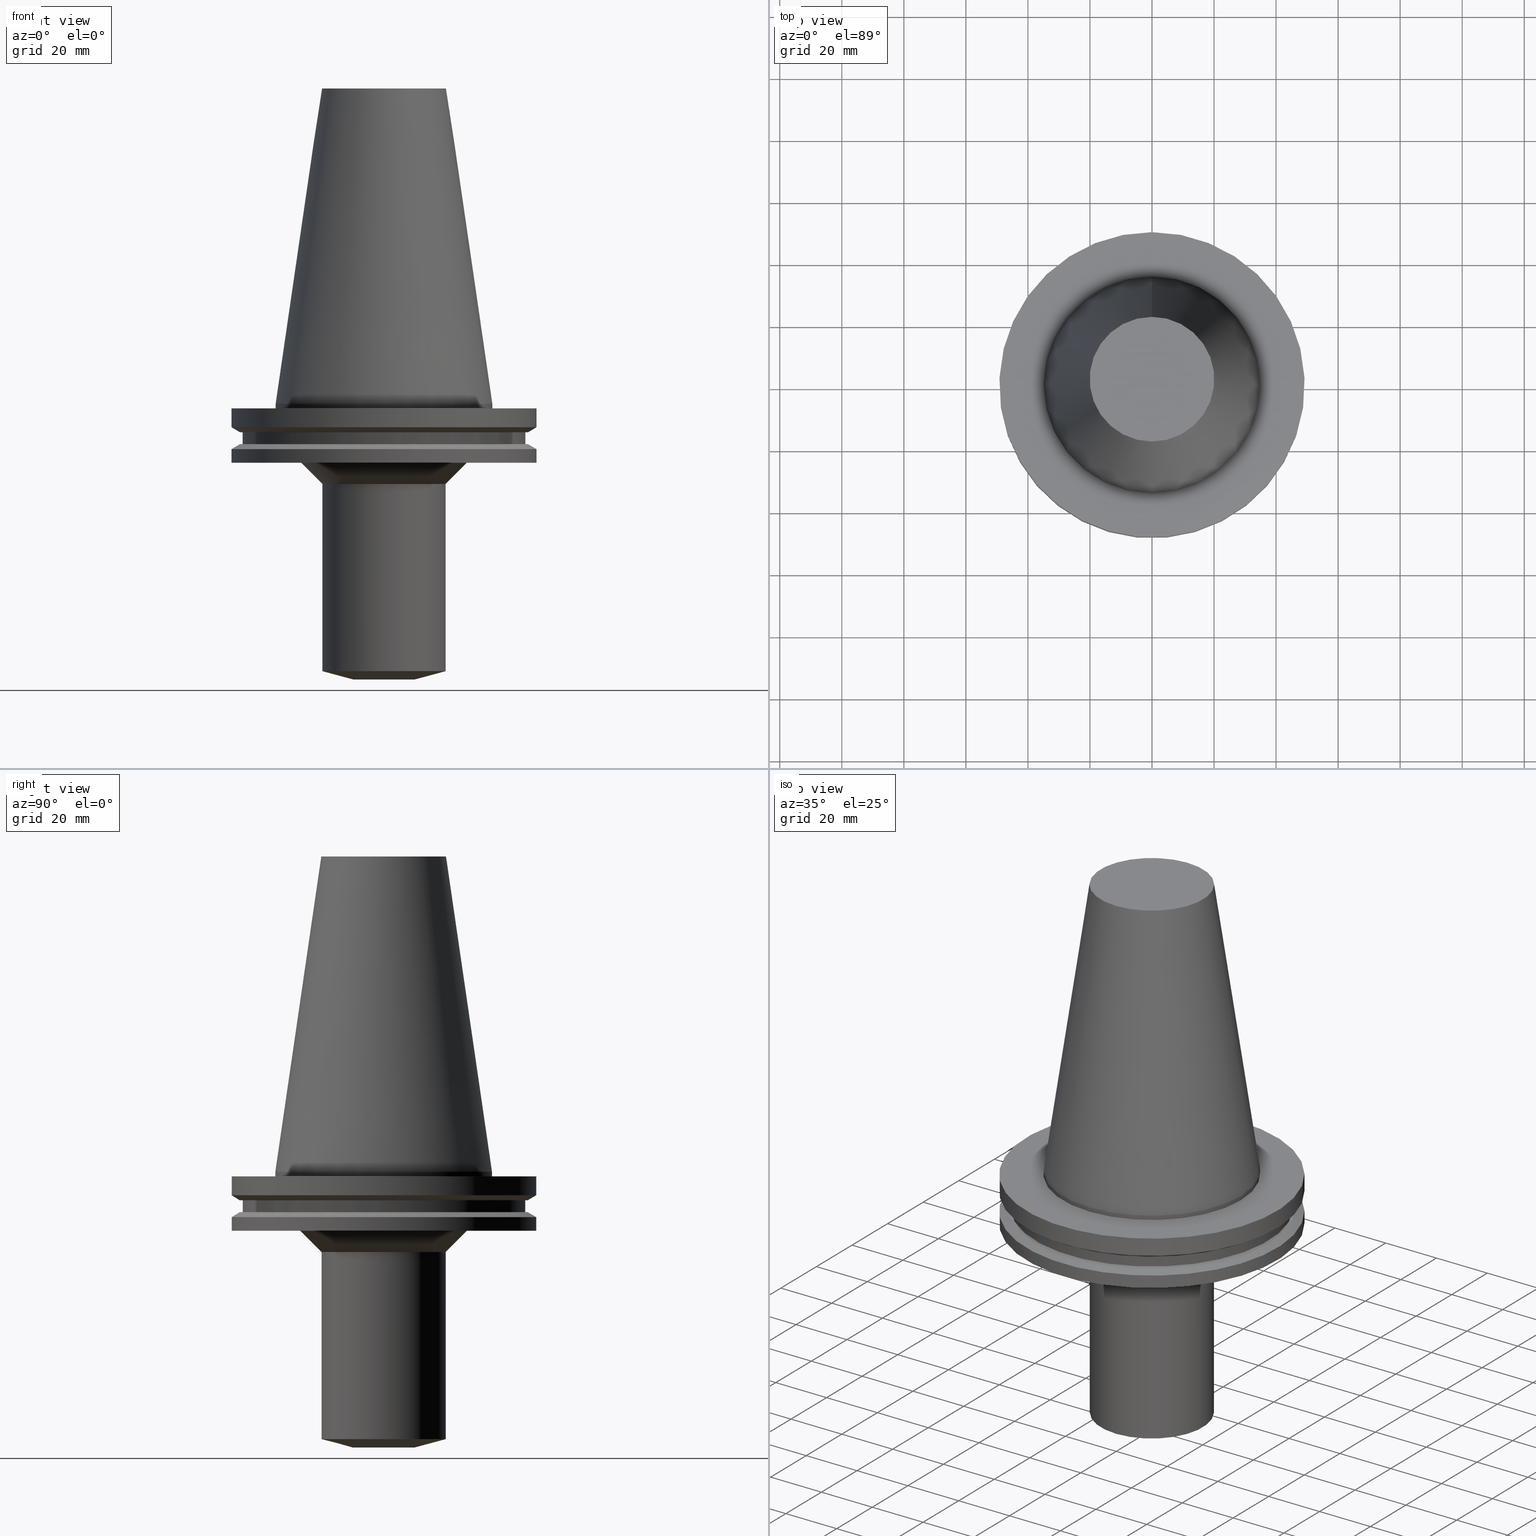
[diagram: canonical four-view strip — front | top / right | iso, engineering-drawing reading convention]
A machine part, canonical four-view strip (front | top / right | iso — engineering-drawing reading convention). The complete STEP part file that produces these views, byte-faithful:
ISO-10303-21;
HEADER;
FILE_DESCRIPTION((''),'1');
FILE_NAME('V:/01_Dxf_Field-HP\X2\FF71FF6FFF8CFF9F5916\X0\2013/BIGKAISER\X2\FF76FF80FF9BFF78FF9E63B28F095206\X0\_BKUS_201803/BCV50Y-BSL/BCV50Y-BSL.625-3.5.stp','2018-03-13T06:31:51',(''),(''),'Spatial Interop R21 SP3','Kubotek KeyCreator 2011 V10.0.2 (22737)',' ');
FILE_SCHEMA(('automotive_design'));
ENDSEC;
DATA;
#1=MECHANICAL_DESIGN_GEOMETRIC_PRESENTATION_REPRESENTATION(' ',(#10,#11,#12,#13,#14,#15,#16,#17,#18,#19,#20,#21,#22,#23,#24,#25,#26,#27,#28,#29,#30,#31,#32,#33,#34,#35,#36,#37,#38,#39,#40,#41),#6);
#2=PRODUCT_DEFINITION_CONTEXT('',#42,'design');
#3=APPLICATION_PROTOCOL_DEFINITION('INTERNATIONAL STANDARD','automotive_design',1994,#42);
#4=PRODUCT_CATEGORY_RELATIONSHIP('NONE','NONE',#43,#44);
#5=SHAPE_DEFINITION_REPRESENTATION(#45,#46);
#6= (GEOMETRIC_REPRESENTATION_CONTEXT(3)GLOBAL_UNCERTAINTY_ASSIGNED_CONTEXT((#49))GLOBAL_UNIT_ASSIGNED_CONTEXT((#51,#52,#53))REPRESENTATION_CONTEXT('NONE','WORKSPACE'));
#10=STYLED_ITEM('',(#55,#56),#57);
#11=STYLED_ITEM('',(#58),#59);
#12=STYLED_ITEM('',(#60,#61),#62);
#13=STYLED_ITEM('',(#63,#64),#65);
#14=STYLED_ITEM('',(#66),#67);
#15=STYLED_ITEM('',(#68),#69);
#16=STYLED_ITEM('',(#70,#71),#72);
#17=STYLED_ITEM('',(#73,#74),#75);
#18=STYLED_ITEM('',(#76),#77);
#19=STYLED_ITEM('',(#78,#79),#80);
#20=STYLED_ITEM('',(#81),#82);
#21=STYLED_ITEM('',(#83,#84),#85);
#22=STYLED_ITEM('',(#86,#87),#88);
#23=STYLED_ITEM('',(#89),#90);
#24=STYLED_ITEM('',(#91,#92),#93);
#25=STYLED_ITEM('',(#94),#95);
#26=STYLED_ITEM('',(#96,#97),#98);
#27=STYLED_ITEM('',(#99,#100),#101);
#28=STYLED_ITEM('',(#102),#103);
#29=STYLED_ITEM('',(#104,#105),#106);
#30=STYLED_ITEM('',(#107),#108);
#31=STYLED_ITEM('',(#109,#110),#111);
#32=STYLED_ITEM('',(#112,#113),#114);
#33=STYLED_ITEM('',(#115),#116);
#34=STYLED_ITEM('',(#117,#118),#119);
#35=STYLED_ITEM('',(#120,#121),#122);
#36=STYLED_ITEM('',(#123),#124);
#37=STYLED_ITEM('',(#125,#126),#127);
#38=STYLED_ITEM('',(#128),#129);
#39=STYLED_ITEM('',(#130),#131);
#40=STYLED_ITEM('',(#132),#133);
#41=STYLED_ITEM('',(#134),#135);
#42=APPLICATION_CONTEXT(' ');
#43=PRODUCT_CATEGORY('part','NONE');
#44=PRODUCT_RELATED_PRODUCT_CATEGORY('detail',' ',(#136));
#45=PRODUCT_DEFINITION_SHAPE('NONE','NONE',#137);
#46=ADVANCED_BREP_SHAPE_REPRESENTATION('Unnamed[1]',(#80,#138),#6);
#49=UNCERTAINTY_MEASURE_WITH_UNIT(LENGTH_MEASURE(1.0E-006),#51,'','');
#51= (CONVERSION_BASED_UNIT('MILLIMETRE',#141)LENGTH_UNIT()NAMED_UNIT(#144));
#52= (NAMED_UNIT(#146)PLANE_ANGLE_UNIT()SI_UNIT($,.RADIAN.));
#53= (NAMED_UNIT(#146)SOLID_ANGLE_UNIT()SI_UNIT($,.STERADIAN.));
#55=PRESENTATION_STYLE_ASSIGNMENT((#152));
#56=PRESENTATION_STYLE_ASSIGNMENT((#153));
#57=ADVANCED_FACE('Unnamed[1]',(#154,#155),#156,.T.);
#58=PRESENTATION_STYLE_ASSIGNMENT((#157));
#59=EDGE_CURVE('Unnamed[1]',#158,#158,#159,.T.);
#60=PRESENTATION_STYLE_ASSIGNMENT((#160));
#61=PRESENTATION_STYLE_ASSIGNMENT((#161));
#62=ADVANCED_FACE('Unnamed[1]',(#162,#163),#164,.T.);
#63=PRESENTATION_STYLE_ASSIGNMENT((#165));
#64=PRESENTATION_STYLE_ASSIGNMENT((#166));
#65=ADVANCED_FACE('Unnamed[1]',(#167,#168),#169,.T.);
#66=PRESENTATION_STYLE_ASSIGNMENT((#170));
#67=EDGE_CURVE('Unnamed[1]',#171,#171,#172,.T.);
#68=PRESENTATION_STYLE_ASSIGNMENT((#173));
#69=EDGE_CURVE('Unnamed[1]',#174,#174,#175,.T.);
#70=PRESENTATION_STYLE_ASSIGNMENT((#176));
#71=PRESENTATION_STYLE_ASSIGNMENT((#177));
#72=ADVANCED_FACE('Unnamed[1]',(#178,#179),#180,.T.);
#73=PRESENTATION_STYLE_ASSIGNMENT((#181));
#74=PRESENTATION_STYLE_ASSIGNMENT((#182));
#75=ADVANCED_FACE('Unnamed[1]',(#183,#184),#185,.T.);
#76=PRESENTATION_STYLE_ASSIGNMENT((#186));
#77=EDGE_CURVE('Unnamed[1]',#187,#187,#188,.T.);
#78=PRESENTATION_STYLE_ASSIGNMENT((#189));
#79=PRESENTATION_STYLE_ASSIGNMENT((#190));
#80=MANIFOLD_SOLID_BREP('Unnamed[1]',#191);
#81=PRESENTATION_STYLE_ASSIGNMENT((#192));
#82=EDGE_CURVE('Unnamed[1]',#193,#193,#194,.T.);
#83=PRESENTATION_STYLE_ASSIGNMENT((#195));
#84=PRESENTATION_STYLE_ASSIGNMENT((#196));
#85=ADVANCED_FACE('Unnamed[1]',(#197,#198),#199,.T.);
#86=PRESENTATION_STYLE_ASSIGNMENT((#200));
#87=PRESENTATION_STYLE_ASSIGNMENT((#201));
#88=ADVANCED_FACE('Unnamed[1]',(#202,#203),#204,.T.);
#89=PRESENTATION_STYLE_ASSIGNMENT((#205));
#90=EDGE_CURVE('Unnamed[1]',#206,#206,#207,.T.);
#91=PRESENTATION_STYLE_ASSIGNMENT((#208));
#92=PRESENTATION_STYLE_ASSIGNMENT((#209));
#93=ADVANCED_FACE('Unnamed[1]',(#210,#211),#212,.T.);
#94=PRESENTATION_STYLE_ASSIGNMENT((#213));
#95=EDGE_CURVE('Unnamed[1]',#214,#214,#215,.T.);
#96=PRESENTATION_STYLE_ASSIGNMENT((#216));
#97=PRESENTATION_STYLE_ASSIGNMENT((#217));
#98=ADVANCED_FACE('Unnamed[1]',(#218,#219),#220,.T.);
#99=PRESENTATION_STYLE_ASSIGNMENT((#221));
#100=PRESENTATION_STYLE_ASSIGNMENT((#222));
#101=ADVANCED_FACE('Unnamed[1]',(#223,#224),#225,.T.);
#102=PRESENTATION_STYLE_ASSIGNMENT((#226));
#103=EDGE_CURVE('Unnamed[1]',#227,#227,#228,.T.);
#104=PRESENTATION_STYLE_ASSIGNMENT((#229));
#105=PRESENTATION_STYLE_ASSIGNMENT((#230));
#106=ADVANCED_FACE('Unnamed[1]',(#231,#232),#233,.T.);
#107=PRESENTATION_STYLE_ASSIGNMENT((#234));
#108=EDGE_CURVE('Unnamed[1]',#235,#235,#236,.T.);
#109=PRESENTATION_STYLE_ASSIGNMENT((#237));
#110=PRESENTATION_STYLE_ASSIGNMENT((#238));
#111=ADVANCED_FACE('Unnamed[1]',(#239,#240),#241,.T.);
#112=PRESENTATION_STYLE_ASSIGNMENT((#242));
#113=PRESENTATION_STYLE_ASSIGNMENT((#243));
#114=ADVANCED_FACE('Unnamed[1]',(#244,#245),#246,.T.);
#115=PRESENTATION_STYLE_ASSIGNMENT((#247));
#116=EDGE_CURVE('Unnamed[1]',#248,#248,#249,.T.);
#117=PRESENTATION_STYLE_ASSIGNMENT((#250));
#118=PRESENTATION_STYLE_ASSIGNMENT((#251));
#119=ADVANCED_FACE('Unnamed[1]',(#252),#253,.T.);
#120=PRESENTATION_STYLE_ASSIGNMENT((#254));
#121=PRESENTATION_STYLE_ASSIGNMENT((#255));
#122=ADVANCED_FACE('Unnamed[1]',(#256,#257),#258,.T.);
#123=PRESENTATION_STYLE_ASSIGNMENT((#259));
#124=EDGE_CURVE('Unnamed[1]',#260,#260,#261,.T.);
#125=PRESENTATION_STYLE_ASSIGNMENT((#262));
#126=PRESENTATION_STYLE_ASSIGNMENT((#263));
#127=ADVANCED_FACE('Unnamed[1]',(#264),#265,.T.);
#128=PRESENTATION_STYLE_ASSIGNMENT((#266));
#129=EDGE_CURVE('Unnamed[1]',#267,#267,#268,.T.);
#130=PRESENTATION_STYLE_ASSIGNMENT((#269));
#131=EDGE_CURVE('Unnamed[1]',#270,#270,#271,.T.);
#132=PRESENTATION_STYLE_ASSIGNMENT((#272));
#133=EDGE_CURVE('Unnamed[1]',#273,#273,#274,.T.);
#134=PRESENTATION_STYLE_ASSIGNMENT((#275));
#135=EDGE_CURVE('Unnamed[1]',#276,#276,#277,.T.);
#136=PRODUCT('Unnamed[1]','Unnamed[1]','PART-Unnamed[1]-DESC',(#278));
#137=PRODUCT_DEFINITION('NONE','NONE',#279,#2);
#138=AXIS2_PLACEMENT_3D('',#280,#281,#282);
#141=LENGTH_MEASURE_WITH_UNIT(LENGTH_MEASURE(1.0),#283);
#144=DIMENSIONAL_EXPONENTS(1.0,0.0,0.0,0.0,0.0,0.0,0.0);
#146=DIMENSIONAL_EXPONENTS(0.0,0.0,0.0,0.0,0.0,0.0,0.0);
#152=SURFACE_STYLE_USAGE(.BOTH.,#284);
#153=CURVE_STYLE('',#285,POSITIVE_LENGTH_MEASURE(1000.0),#286);
#154=FACE_OUTER_BOUND('',#287,.T.);
#155=FACE_BOUND('',#288,.T.);
#156=PLANE('',#289);
#157=CURVE_STYLE('',#290,POSITIVE_LENGTH_MEASURE(1000.0),#291);
#158=VERTEX_POINT('',#292);
#159=CIRCLE('',#293,34.925);
#160=SURFACE_STYLE_USAGE(.BOTH.,#294);
#161=CURVE_STYLE('',#295,POSITIVE_LENGTH_MEASURE(1000.0),#296);
#162=FACE_BOUND('',#297,.T.);
#163=FACE_BOUND('',#298,.T.);
#164=CONICAL_SURFACE('',#299,23.424999999992,0.785398163397448);
#165=SURFACE_STYLE_USAGE(.BOTH.,#300);
#166=CURVE_STYLE('',#301,POSITIVE_LENGTH_MEASURE(1000.0),#302);
#167=FACE_BOUND('',#303,.T.);
#168=FACE_BOUND('',#304,.T.);
#169=CYLINDRICAL_SURFACE('',#305,49.2125);
#170=CURVE_STYLE('',#306,POSITIVE_LENGTH_MEASURE(1000.0),#307);
#171=VERTEX_POINT('',#308);
#172=CIRCLE('',#309,19.9999999999964);
#173=CURVE_STYLE('',#310,POSITIVE_LENGTH_MEASURE(1000.0),#311);
#174=VERTEX_POINT('',#312);
#175=CIRCLE('',#313,46.43053755);
#176=SURFACE_STYLE_USAGE(.BOTH.,#314);
#177=CURVE_STYLE('',#315,POSITIVE_LENGTH_MEASURE(1000.0),#316);
#178=FACE_BOUND('',#317,.T.);
#179=FACE_BOUND('',#318,.T.);
#180=CONICAL_SURFACE('',#319,14.9999999999964,1.30899693899575);
#181=SURFACE_STYLE_USAGE(.BOTH.,#320);
#182=CURVE_STYLE('',#321,POSITIVE_LENGTH_MEASURE(1000.0),#322);
#183=FACE_BOUND('',#323,.T.);
#184=FACE_BOUND('',#324,.T.);
#185=CYLINDRICAL_SURFACE('',#325,45.645);
#186=CURVE_STYLE('',#326,POSITIVE_LENGTH_MEASURE(1000.0),#327);
#187=VERTEX_POINT('',#328);
#188=CIRCLE('',#329,26.8499999999889);
#189=SURFACE_STYLE_USAGE(.BOTH.,#330);
#190=CURVE_STYLE('',#331,POSITIVE_LENGTH_MEASURE(1000.0),#332);
#191=CLOSED_SHELL('',(#119,#106,#111,#93,#65,#98,#122,#75,#57,#85,#88,#114,#62,#101,#72,#127));
#192=CURVE_STYLE('',#333,POSITIVE_LENGTH_MEASURE(1000.0),#334);
#193=VERTEX_POINT('',#335);
#194=CIRCLE('',#336,49.2125);
#195=SURFACE_STYLE_USAGE(.BOTH.,#337);
#196=CURVE_STYLE('',#338,POSITIVE_LENGTH_MEASURE(1000.0),#339);
#197=FACE_BOUND('',#340,.T.);
#198=FACE_BOUND('',#341,.T.);
#199=CONICAL_SURFACE('',#342,47.821518775,1.04719755103023);
#200=SURFACE_STYLE_USAGE(.BOTH.,#343);
#201=CURVE_STYLE('',#344,POSITIVE_LENGTH_MEASURE(1000.0),#345);
#202=FACE_BOUND('',#346,.T.);
#203=FACE_BOUND('',#347,.T.);
#204=CYLINDRICAL_SURFACE('',#348,49.2125);
#205=CURVE_STYLE('',#349,POSITIVE_LENGTH_MEASURE(1000.0),#350);
#206=VERTEX_POINT('',#351);
#207=CIRCLE('',#352,45.645);
#208=SURFACE_STYLE_USAGE(.BOTH.,#353);
#209=CURVE_STYLE('',#354,POSITIVE_LENGTH_MEASURE(1000.0),#355);
#210=FACE_OUTER_BOUND('',#356,.T.);
#211=FACE_BOUND('',#357,.T.);
#212=PLANE('',#358);
#213=CURVE_STYLE('',#359,POSITIVE_LENGTH_MEASURE(1000.0),#360);
#214=VERTEX_POINT('',#361);
#215=CIRCLE('',#362,49.2125);
#216=SURFACE_STYLE_USAGE(.BOTH.,#363);
#217=CURVE_STYLE('',#364,POSITIVE_LENGTH_MEASURE(1000.0),#365);
#218=FACE_BOUND('',#366,.T.);
#219=FACE_BOUND('',#367,.T.);
#220=CONICAL_SURFACE('',#368,47.821518775,1.04719755103024);
#221=SURFACE_STYLE_USAGE(.BOTH.,#369);
#222=CURVE_STYLE('',#370,POSITIVE_LENGTH_MEASURE(1000.0),#371);
#223=FACE_BOUND('',#372,.T.);
#224=FACE_BOUND('',#373,.T.);
#225=CYLINDRICAL_SURFACE('',#374,19.9999999999957);
#226=CURVE_STYLE('',#375,POSITIVE_LENGTH_MEASURE(1000.0),#376);
#227=VERTEX_POINT('',#377);
#228=CIRCLE('',#378,49.2125);
#229=SURFACE_STYLE_USAGE(.BOTH.,#379);
#230=CURVE_STYLE('',#380,POSITIVE_LENGTH_MEASURE(1000.0),#381);
#231=FACE_BOUND('',#382,.T.);
#232=FACE_BOUND('',#383,.T.);
#233=CONICAL_SURFACE('',#384,27.5166666648609,0.144812498273746);
#234=CURVE_STYLE('',#385,POSITIVE_LENGTH_MEASURE(1000.0),#386);
#235=VERTEX_POINT('',#387);
#236=CIRCLE('',#388,45.645);
#237=SURFACE_STYLE_USAGE(.BOTH.,#389);
#238=CURVE_STYLE('',#390,POSITIVE_LENGTH_MEASURE(1000.0),#391);
#239=FACE_BOUND('',#392,.T.);
#240=FACE_BOUND('',#393,.T.);
#241=CYLINDRICAL_SURFACE('',#394,34.925);
#242=SURFACE_STYLE_USAGE(.BOTH.,#395);
#243=CURVE_STYLE('',#396,POSITIVE_LENGTH_MEASURE(1000.0),#397);
#244=FACE_BOUND('',#398,.T.);
#245=FACE_OUTER_BOUND('',#399,.T.);
#246=PLANE('',#400);
#247=CURVE_STYLE('',#401,POSITIVE_LENGTH_MEASURE(1000.0),#402);
#248=VERTEX_POINT('',#403);
#249=CIRCLE('',#404,9.99999999999631);
#250=SURFACE_STYLE_USAGE(.BOTH.,#405);
#251=CURVE_STYLE('',#406,POSITIVE_LENGTH_MEASURE(1000.0),#407);
#252=FACE_OUTER_BOUND('',#408,.T.);
#253=PLANE('',#409);
#254=SURFACE_STYLE_USAGE(.BOTH.,#410);
#255=CURVE_STYLE('',#411,POSITIVE_LENGTH_MEASURE(1000.0),#412);
#256=FACE_BOUND('',#413,.T.);
#257=FACE_OUTER_BOUND('',#414,.T.);
#258=PLANE('',#415);
#259=CURVE_STYLE('',#416,POSITIVE_LENGTH_MEASURE(1000.0),#417);
#260=VERTEX_POINT('',#418);
#261=CIRCLE('',#419,49.2125);
#262=SURFACE_STYLE_USAGE(.BOTH.,#420);
#263=CURVE_STYLE('',#421,POSITIVE_LENGTH_MEASURE(1000.0),#422);
#264=FACE_OUTER_BOUND('',#423,.T.);
#265=PLANE('',#424);
#266=CURVE_STYLE('',#425,POSITIVE_LENGTH_MEASURE(1000.0),#426);
#267=VERTEX_POINT('',#427);
#268=CIRCLE('',#428,20.1083333297217);
#269=CURVE_STYLE('',#429,POSITIVE_LENGTH_MEASURE(1000.0),#430);
#270=VERTEX_POINT('',#431);
#271=CIRCLE('',#432,34.925);
#272=CURVE_STYLE('',#433,POSITIVE_LENGTH_MEASURE(1000.0),#434);
#273=VERTEX_POINT('',#435);
#274=CIRCLE('',#436,19.999999999995);
#275=CURVE_STYLE('',#437,POSITIVE_LENGTH_MEASURE(1000.0),#438);
#276=VERTEX_POINT('',#439);
#277=CIRCLE('',#440,46.43053755);
#278=PRODUCT_CONTEXT('',#42,'mechanical');
#279=PRODUCT_DEFINITION_FORMATION_WITH_SPECIFIED_SOURCE(' ','NONE',#136,.NOT_KNOWN.);
#280=CARTESIAN_POINT('',(0.0,0.0,0.0));
#281=DIRECTION('',(0.0,0.0,1.0));
#282=DIRECTION('',(1.0,0.0,0.0));
#283= (NAMED_UNIT(#144)LENGTH_UNIT()SI_UNIT(.MILLI.,.METRE.));
#284=SURFACE_SIDE_STYLE('',(#442));
#285=DRAUGHTING_PRE_DEFINED_CURVE_FONT('continuous');
#286=COLOUR_RGB('',0.0,1.0,0.0);
#287=EDGE_LOOP('',(#443));
#288=EDGE_LOOP('',(#444));
#289=AXIS2_PLACEMENT_3D('',#445,#446,#447);
#290=DRAUGHTING_PRE_DEFINED_CURVE_FONT('continuous');
#291=COLOUR_RGB('',0.0,1.0,0.0);
#292=CARTESIAN_POINT('',(-4.30483861169435E-031,34.925,4.27707894602213E-015));
#293=AXIS2_PLACEMENT_3D('',#448,#449,#450);
#294=SURFACE_SIDE_STYLE('',(#451));
#295=DRAUGHTING_PRE_DEFINED_CURVE_FONT('continuous');
#296=COLOUR_RGB('',0.0,1.0,0.0);
#297=EDGE_LOOP('',(#452));
#298=EDGE_LOOP('',(#453));
#299=AXIS2_PLACEMENT_3D('',#454,#455,#456);
#300=SURFACE_SIDE_STYLE('',(#457));
#301=DRAUGHTING_PRE_DEFINED_CURVE_FONT('continuous');
#302=COLOUR_RGB('',0.0,1.0,0.0);
#303=EDGE_LOOP('',(#458));
#304=EDGE_LOOP('',(#459));
#305=AXIS2_PLACEMENT_3D('',#460,#461,#462);
#306=DRAUGHTING_PRE_DEFINED_CURVE_FONT('continuous');
#307=COLOUR_RGB('',0.0,1.0,0.0);
#308=CARTESIAN_POINT('',(5.27948346178746E-015,19.9999999999964,-86.2205080756875));
#309=AXIS2_PLACEMENT_3D('',#463,#464,#465);
#310=DRAUGHTING_PRE_DEFINED_CURVE_FONT('continuous');
#311=COLOUR_RGB('',0.0,1.0,0.0);
#312=CARTESIAN_POINT('',(7.98469713044073E-016,46.43053755,-13.04));
#313=AXIS2_PLACEMENT_3D('',#466,#467,#468);
#314=SURFACE_SIDE_STYLE('',(#469));
#315=DRAUGHTING_PRE_DEFINED_CURVE_FONT('continuous');
#316=COLOUR_RGB('',0.0,1.0,0.0);
#317=EDGE_LOOP('',(#470));
#318=EDGE_LOOP('',(#471));
#319=AXIS2_PLACEMENT_3D('',#472,#473,#474);
#320=SURFACE_SIDE_STYLE('',(#475));
#321=DRAUGHTING_PRE_DEFINED_CURVE_FONT('continuous');
#322=COLOUR_RGB('',0.0,1.0,0.0);
#323=EDGE_LOOP('',(#476));
#324=EDGE_LOOP('',(#477));
#325=AXIS2_PLACEMENT_3D('',#478,#479,#480);
#326=DRAUGHTING_PRE_DEFINED_CURVE_FONT('continuous');
#327=COLOUR_RGB('',0.0,1.0,0.0);
#328=CARTESIAN_POINT('',(1.16647607618786E-015,26.8499999999889,-19.0500000000002));
#329=AXIS2_PLACEMENT_3D('',#481,#482,#483);
#330=SURFACE_SIDE_STYLE('',(#484));
#331=DRAUGHTING_PRE_DEFINED_CURVE_FONT('continuous');
#332=COLOUR_RGB('',0.0,1.0,0.0);
#333=DRAUGHTING_PRE_DEFINED_CURVE_FONT('continuous');
#334=COLOUR_RGB('',0.0,1.0,0.0);
#335=CARTESIAN_POINT('',(1.16647607618785E-015,49.2125,-19.05));
#336=AXIS2_PLACEMENT_3D('',#485,#486,#487);
#337=SURFACE_SIDE_STYLE('',(#488));
#338=DRAUGHTING_PRE_DEFINED_CURVE_FONT('continuous');
#339=COLOUR_RGB('',0.0,1.0,0.0);
#340=EDGE_LOOP('',(#489));
#341=EDGE_LOOP('',(#490));
#342=AXIS2_PLACEMENT_3D('',#491,#492,#493);
#343=SURFACE_SIDE_STYLE('',(#494));
#344=DRAUGHTING_PRE_DEFINED_CURVE_FONT('continuous');
#345=COLOUR_RGB('',0.0,1.0,0.0);
#346=EDGE_LOOP('',(#495));
#347=EDGE_LOOP('',(#496));
#348=AXIS2_PLACEMENT_3D('',#497,#498,#499);
#349=DRAUGHTING_PRE_DEFINED_CURVE_FONT('continuous');
#350=COLOUR_RGB('',0.0,1.0,0.0);
#351=CARTESIAN_POINT('',(5.63337527607782E-016,45.645,-9.2));
#352=AXIS2_PLACEMENT_3D('',#500,#501,#502);
#353=SURFACE_SIDE_STYLE('',(#503));
#354=DRAUGHTING_PRE_DEFINED_CURVE_FONT('continuous');
#355=COLOUR_RGB('',0.0,1.0,0.0);
#356=EDGE_LOOP('',(#504));
#357=EDGE_LOOP('',(#505));
#358=AXIS2_PLACEMENT_3D('',#506,#507,#508);
#359=DRAUGHTING_PRE_DEFINED_CURVE_FONT('continuous');
#360=COLOUR_RGB('',0.0,1.0,0.0);
#361=CARTESIAN_POINT('',(4.64988177918915E-016,49.2125,-7.59383323));
#362=AXIS2_PLACEMENT_3D('',#509,#510,#511);
#363=SURFACE_SIDE_STYLE('',(#512));
#364=DRAUGHTING_PRE_DEFINED_CURVE_FONT('continuous');
#365=COLOUR_RGB('',0.0,1.0,0.0);
#366=EDGE_LOOP('',(#513));
#367=EDGE_LOOP('',(#514));
#368=AXIS2_PLACEMENT_3D('',#515,#516,#517);
#369=SURFACE_SIDE_STYLE('',(#518));
#370=DRAUGHTING_PRE_DEFINED_CURVE_FONT('continuous');
#371=COLOUR_RGB('',0.0,1.0,0.0);
#372=EDGE_LOOP('',(#519));
#373=EDGE_LOOP('',(#520));
#374=AXIS2_PLACEMENT_3D('',#521,#522,#523);
#375=DRAUGHTING_PRE_DEFINED_CURVE_FONT('continuous');
#376=COLOUR_RGB('',0.0,1.0,0.0);
#377=CARTESIAN_POINT('',(9.18485099360509E-017,49.2125,-1.49999999999999));
#378=AXIS2_PLACEMENT_3D('',#524,#525,#526);
#379=SURFACE_SIDE_STYLE('',(#527));
#380=DRAUGHTING_PRE_DEFINED_CURVE_FONT('continuous');
#381=COLOUR_RGB('',0.0,1.0,0.0);
#382=EDGE_LOOP('',(#528));
#383=EDGE_LOOP('',(#529));
#384=AXIS2_PLACEMENT_3D('',#530,#531,#532);
#385=DRAUGHTING_PRE_DEFINED_CURVE_FONT('continuous');
#386=COLOUR_RGB('',0.0,1.0,0.0);
#387=CARTESIAN_POINT('',(7.98469713044073E-016,45.645,-13.04));
#388=AXIS2_PLACEMENT_3D('',#533,#534,#535);
#389=SURFACE_SIDE_STYLE('',(#536));
#390=DRAUGHTING_PRE_DEFINED_CURVE_FONT('continuous');
#391=COLOUR_RGB('',0.0,1.0,0.0);
#392=EDGE_LOOP('',(#537));
#393=EDGE_LOOP('',(#538));
#394=AXIS2_PLACEMENT_3D('',#539,#540,#541);
#395=SURFACE_SIDE_STYLE('',(#542));
#396=DRAUGHTING_PRE_DEFINED_CURVE_FONT('continuous');
#397=COLOUR_RGB('',0.0,1.0,0.0);
#398=EDGE_LOOP('',(#543));
#399=EDGE_LOOP('',(#544));
#400=AXIS2_PLACEMENT_3D('',#545,#546,#547);
#401=DRAUGHTING_PRE_DEFINED_CURVE_FONT('continuous');
#402=COLOUR_RGB('',0.0,1.0,0.0);
#403=CARTESIAN_POINT('',(5.44355502220991E-015,9.99999999999632,-88.8999999999987));
#404=AXIS2_PLACEMENT_3D('',#548,#549,#550);
#405=SURFACE_SIDE_STYLE('',(#551));
#406=DRAUGHTING_PRE_DEFINED_CURVE_FONT('continuous');
#407=COLOUR_RGB('',0.0,1.0,0.0);
#408=EDGE_LOOP('',(#552));
#409=AXIS2_PLACEMENT_3D('',#553,#554,#555);
#410=SURFACE_SIDE_STYLE('',(#556));
#411=DRAUGHTING_PRE_DEFINED_CURVE_FONT('continuous');
#412=COLOUR_RGB('',0.0,1.0,0.0);
#413=EDGE_LOOP('',(#557));
#414=EDGE_LOOP('',(#558));
#415=AXIS2_PLACEMENT_3D('',#559,#560,#561);
#416=DRAUGHTING_PRE_DEFINED_CURVE_FONT('continuous');
#417=COLOUR_RGB('',0.0,1.0,0.0);
#418=CARTESIAN_POINT('',(8.96819062732941E-016,49.2125,-14.64616677));
#419=AXIS2_PLACEMENT_3D('',#562,#563,#564);
#420=SURFACE_SIDE_STYLE('',(#565));
#421=DRAUGHTING_PRE_DEFINED_CURVE_FONT('continuous');
#422=COLOUR_RGB('',0.0,1.0,0.0);
#423=EDGE_LOOP('',(#566));
#424=AXIS2_PLACEMENT_3D('',#567,#568,#569);
#425=DRAUGHTING_PRE_DEFINED_CURVE_FONT('continuous');
#426=COLOUR_RGB('',0.0,1.0,0.0);
#427=CARTESIAN_POINT('',(-6.22120573966855E-015,20.1083333297217,101.6));
#428=AXIS2_PLACEMENT_3D('',#570,#571,#572);
#429=DRAUGHTING_PRE_DEFINED_CURVE_FONT('continuous');
#430=COLOUR_RGB('',0.0,1.0,0.0);
#431=CARTESIAN_POINT('',(9.18485099360511E-017,34.925,-1.5));
#432=AXIS2_PLACEMENT_3D('',#573,#574,#575);
#433=DRAUGHTING_PRE_DEFINED_CURVE_FONT('continuous');
#434=COLOUR_RGB('',0.0,1.0,0.0);
#435=CARTESIAN_POINT('',(1.58591760489546E-015,19.999999999995,-25.899999999994));
#436=AXIS2_PLACEMENT_3D('',#576,#577,#578);
#437=DRAUGHTING_PRE_DEFINED_CURVE_FONT('continuous');
#438=COLOUR_RGB('',0.0,1.0,0.0);
#439=CARTESIAN_POINT('',(5.63337527607782E-016,46.43053755,-9.2));
#440=AXIS2_PLACEMENT_3D('',#579,#580,#581);
#442=SURFACE_STYLE_FILL_AREA(#582);
#443=ORIENTED_EDGE('',*,*,#69,.F.);
#444=ORIENTED_EDGE('',*,*,#108,.T.);
#445=CARTESIAN_POINT('',(7.98469713044073E-016,46.037768775,-13.04));
#446=DIRECTION('',(-6.12323399573677E-017,-1.22464679914735E-016,1.0));
#447=DIRECTION('',(1.23259516440783E-032,-1.0,-1.22464679914735E-016));
#448=CARTESIAN_POINT('',(0.0,0.0,0.0));
#449=DIRECTION('',(6.12323399573677E-017,1.22464679914735E-016,-1.0));
#450=DIRECTION('',(-1.23259516440783E-032,1.0,1.22464679914735E-016));
#451=SURFACE_STYLE_FILL_AREA(#583);
#452=ORIENTED_EDGE('',*,*,#133,.F.);
#453=ORIENTED_EDGE('',*,*,#77,.T.);
#454=CARTESIAN_POINT('',(1.37619684054166E-015,2.75239368108332E-015,-22.4749999999971));
#455=DIRECTION('',(-6.12323399573677E-017,-1.22464679914735E-016,1.0));
#456=DIRECTION('',(-1.23259516440783E-032,1.0,1.22464679914735E-016));
#457=SURFACE_STYLE_FILL_AREA(#584);
#458=ORIENTED_EDGE('',*,*,#95,.F.);
#459=ORIENTED_EDGE('',*,*,#103,.T.);
#460=CARTESIAN_POINT('',(2.78418343927483E-016,5.56836687854967E-016,-4.546916615));
#461=DIRECTION('',(6.12323399573677E-017,1.22464679914735E-016,-1.0));
#462=DIRECTION('',(-1.23259516440783E-032,1.0,1.22464679914735E-016));
#463=CARTESIAN_POINT('',(5.27948346178746E-015,1.05589669235749E-014,-86.2205080756875));
#464=DIRECTION('',(6.12323399573676E-017,1.22464679914735E-016,-1.0));
#465=DIRECTION('',(-1.23259516440783E-032,1.0,1.22464679914735E-016));
#466=CARTESIAN_POINT('',(7.98469713044074E-016,1.59693942608815E-015,-13.04));
#467=DIRECTION('',(6.12323399573677E-017,1.22464679914735E-016,-1.0));
#468=DIRECTION('',(-1.23259516440783E-032,1.0,1.22464679914735E-016));
#469=SURFACE_STYLE_FILL_AREA(#585);
#470=ORIENTED_EDGE('',*,*,#116,.F.);
#471=ORIENTED_EDGE('',*,*,#67,.T.);
#472=CARTESIAN_POINT('',(5.36151924199868E-015,1.07230384839974E-014,-87.5602540378431));
#473=DIRECTION('',(-6.12323399573677E-017,-1.22464679914735E-016,1.0));
#474=DIRECTION('',(-1.23259516440783E-032,1.0,1.22464679914735E-016));
#475=SURFACE_STYLE_FILL_AREA(#586);
#476=ORIENTED_EDGE('',*,*,#108,.F.);
#477=ORIENTED_EDGE('',*,*,#90,.T.);
#478=CARTESIAN_POINT('',(6.80903620325929E-016,1.36180724065186E-015,-11.12));
#479=DIRECTION('',(6.12323399573677E-017,1.22464679914735E-016,-1.0));
#480=DIRECTION('',(-1.23259516440783E-032,1.0,1.22464679914735E-016));
#481=CARTESIAN_POINT('',(1.16647607618786E-015,2.33295215237573E-015,-19.0500000000002));
#482=DIRECTION('',(6.12323399573677E-017,1.22464679914735E-016,-1.0));
#483=DIRECTION('',(-1.23259516440783E-032,1.0,1.22464679914735E-016));
#484=SURFACE_STYLE_FILL_AREA(#587);
#485=CARTESIAN_POINT('',(1.16647607618785E-015,2.33295215237571E-015,-19.05));
#486=DIRECTION('',(6.12323399573677E-017,1.22464679914735E-016,-1.0));
#487=DIRECTION('',(-1.23259516440783E-032,1.0,1.22464679914735E-016));
#488=SURFACE_STYLE_FILL_AREA(#588);
#489=ORIENTED_EDGE('',*,*,#124,.F.);
#490=ORIENTED_EDGE('',*,*,#69,.T.);
#491=CARTESIAN_POINT('',(8.47644387888508E-016,1.69528877577702E-015,-13.843083385));
#492=DIRECTION('',(6.12323399573677E-017,1.22464679914735E-016,-1.0));
#493=DIRECTION('',(-1.23259516440783E-032,1.0,1.22464679914735E-016));
#494=SURFACE_STYLE_FILL_AREA(#589);
#495=ORIENTED_EDGE('',*,*,#82,.F.);
#496=ORIENTED_EDGE('',*,*,#124,.T.);
#497=CARTESIAN_POINT('',(1.0316475694604E-015,2.0632951389208E-015,-16.848083385));
#498=DIRECTION('',(6.12323399573677E-017,1.22464679914735E-016,-1.0));
#499=DIRECTION('',(-1.23259516440783E-032,1.0,1.22464679914735E-016));
#500=CARTESIAN_POINT('',(5.63337527607783E-016,1.12667505521557E-015,-9.2));
#501=DIRECTION('',(6.12323399573677E-017,1.22464679914735E-016,-1.0));
#502=DIRECTION('',(-1.23259516440783E-032,1.0,1.22464679914735E-016));
#503=SURFACE_STYLE_FILL_AREA(#590);
#504=ORIENTED_EDGE('',*,*,#103,.F.);
#505=ORIENTED_EDGE('',*,*,#131,.T.);
#506=CARTESIAN_POINT('',(9.1848509936051E-017,42.06875,-1.49999999999999));
#507=DIRECTION('',(-6.12323399573677E-017,-1.22464679914735E-016,1.0));
#508=DIRECTION('',(1.23259516440783E-032,-1.0,-1.22464679914735E-016));
#509=CARTESIAN_POINT('',(4.64988177918915E-016,9.29976355837831E-016,-7.59383323));
#510=DIRECTION('',(6.12323399573677E-017,1.22464679914735E-016,-1.0));
#511=DIRECTION('',(-1.23259516440783E-032,1.0,1.22464679914735E-016));
#512=SURFACE_STYLE_FILL_AREA(#591);
#513=ORIENTED_EDGE('',*,*,#135,.F.);
#514=ORIENTED_EDGE('',*,*,#95,.T.);
#515=CARTESIAN_POINT('',(5.14162852763349E-016,1.0283257055267E-015,-8.39691661500001));
#516=DIRECTION('',(-6.12323399573677E-017,-1.22464679914735E-016,1.0));
#517=DIRECTION('',(-1.23259516440783E-032,1.0,1.22464679914735E-016));
#518=SURFACE_STYLE_FILL_AREA(#592);
#519=ORIENTED_EDGE('',*,*,#67,.F.);
#520=ORIENTED_EDGE('',*,*,#133,.T.);
#521=CARTESIAN_POINT('',(3.43270053334146E-015,6.86540106668292E-015,-56.0602540378408));
#522=DIRECTION('',(6.12323399573677E-017,1.22464679914735E-016,-1.0));
#523=DIRECTION('',(-1.23259516440783E-032,1.0,1.22464679914735E-016));
#524=CARTESIAN_POINT('',(9.18485099360515E-017,1.83697019872103E-016,-1.5));
#525=DIRECTION('',(6.12323399573677E-017,1.22464679914735E-016,-1.0));
#526=DIRECTION('',(-1.23259516440783E-032,1.0,1.22464679914735E-016));
#527=SURFACE_STYLE_FILL_AREA(#593);
#528=ORIENTED_EDGE('',*,*,#59,.F.);
#529=ORIENTED_EDGE('',*,*,#129,.T.);
#530=CARTESIAN_POINT('',(-3.11060286983428E-015,-6.22120573966855E-015,50.8));
#531=DIRECTION('',(6.12323399573677E-017,1.22464679914735E-016,-1.0));
#532=DIRECTION('',(-1.23259516440783E-032,1.0,1.22464679914735E-016));
#533=CARTESIAN_POINT('',(7.98469713044074E-016,1.59693942608815E-015,-13.04));
#534=DIRECTION('',(6.12323399573677E-017,1.22464679914735E-016,-1.0));
#535=DIRECTION('',(-1.23259516440783E-032,1.0,1.22464679914735E-016));
#536=SURFACE_STYLE_FILL_AREA(#594);
#537=ORIENTED_EDGE('',*,*,#131,.F.);
#538=ORIENTED_EDGE('',*,*,#59,.T.);
#539=CARTESIAN_POINT('',(4.59242549680257E-017,9.18485099360515E-017,-0.75));
#540=DIRECTION('',(6.12323399573677E-017,1.22464679914735E-016,-1.0));
#541=DIRECTION('',(-1.23259516440783E-032,1.0,1.22464679914735E-016));
#542=SURFACE_STYLE_FILL_AREA(#595);
#543=ORIENTED_EDGE('',*,*,#77,.F.);
#544=ORIENTED_EDGE('',*,*,#82,.T.);
#545=CARTESIAN_POINT('',(1.16647607618786E-015,38.0312499999944,-19.0500000000001));
#546=DIRECTION('',(6.12323399573677E-017,6.79497332204094E-015,-1.0));
#547=DIRECTION('',(-4.20899269187224E-031,1.0,6.79497332204094E-015));
#548=CARTESIAN_POINT('',(5.44355502220991E-015,1.08871100444198E-014,-88.8999999999987));
#549=DIRECTION('',(6.12323399573677E-017,1.22464679914735E-016,-1.0));
#550=DIRECTION('',(-1.23259516440783E-032,1.0,1.22464679914735E-016));
#551=SURFACE_STYLE_FILL_AREA(#596);
#552=ORIENTED_EDGE('',*,*,#129,.F.);
#553=CARTESIAN_POINT('',(-6.22120573966855E-015,10.0541666648608,101.6));
#554=DIRECTION('',(-6.12323399573677E-017,-1.22464679914735E-016,1.0));
#555=DIRECTION('',(1.23259516440783E-032,-1.0,-1.22464679914735E-016));
#556=SURFACE_STYLE_FILL_AREA(#597);
#557=ORIENTED_EDGE('',*,*,#90,.F.);
#558=ORIENTED_EDGE('',*,*,#135,.T.);
#559=CARTESIAN_POINT('',(5.63337527607782E-016,46.037768775,-9.2));
#560=DIRECTION('',(6.12323399573677E-017,1.22464679914735E-016,-1.0));
#561=DIRECTION('',(-1.23259516440783E-032,1.0,1.22464679914735E-016));
#562=CARTESIAN_POINT('',(8.96819062732942E-016,1.79363812546588E-015,-14.64616677));
#563=DIRECTION('',(6.12323399573677E-017,1.22464679914735E-016,-1.0));
#564=DIRECTION('',(-1.23259516440783E-032,1.0,1.22464679914735E-016));
#565=SURFACE_STYLE_FILL_AREA(#598);
#566=ORIENTED_EDGE('',*,*,#116,.T.);
#567=CARTESIAN_POINT('',(5.44355502220991E-015,4.99999999999817,-88.8999999999987));
#568=DIRECTION('',(6.12323399573677E-017,1.22464679914735E-016,-1.0));
#569=DIRECTION('',(-1.23259516440783E-032,1.0,1.22464679914735E-016));
#570=CARTESIAN_POINT('',(-6.22120573966855E-015,-1.24424114793371E-014,101.6));
#571=DIRECTION('',(6.12323399573676E-017,1.22464679914735E-016,-1.0));
#572=DIRECTION('',(-1.23259516440783E-032,1.0,1.22464679914735E-016));
#573=CARTESIAN_POINT('',(9.18485099360515E-017,1.83697019872103E-016,-1.5));
#574=DIRECTION('',(6.12323399573677E-017,1.22464679914735E-016,-1.0));
#575=DIRECTION('',(-1.23259516440783E-032,1.0,1.22464679914735E-016));
#576=CARTESIAN_POINT('',(1.58591760489546E-015,3.17183520979091E-015,-25.899999999994));
#577=DIRECTION('',(6.12323399573677E-017,1.22464679914735E-016,-1.0));
#578=DIRECTION('',(-1.23259516440783E-032,1.0,1.22464679914735E-016));
#579=CARTESIAN_POINT('',(5.63337527607783E-016,1.12667505521557E-015,-9.2));
#580=DIRECTION('',(6.12323399573677E-017,1.22464679914735E-016,-1.0));
#581=DIRECTION('',(-1.23259516440783E-032,1.0,1.22464679914735E-016));
#582=FILL_AREA_STYLE('',(#599));
#583=FILL_AREA_STYLE('',(#600));
#584=FILL_AREA_STYLE('',(#601));
#585=FILL_AREA_STYLE('',(#602));
#586=FILL_AREA_STYLE('',(#603));
#587=FILL_AREA_STYLE('',(#604));
#588=FILL_AREA_STYLE('',(#605));
#589=FILL_AREA_STYLE('',(#606));
#590=FILL_AREA_STYLE('',(#607));
#591=FILL_AREA_STYLE('',(#608));
#592=FILL_AREA_STYLE('',(#609));
#593=FILL_AREA_STYLE('',(#610));
#594=FILL_AREA_STYLE('',(#611));
#595=FILL_AREA_STYLE('',(#612));
#596=FILL_AREA_STYLE('',(#613));
#597=FILL_AREA_STYLE('',(#614));
#598=FILL_AREA_STYLE('',(#615));
#599=FILL_AREA_STYLE_COLOUR('',#616);
#600=FILL_AREA_STYLE_COLOUR('',#617);
#601=FILL_AREA_STYLE_COLOUR('',#618);
#602=FILL_AREA_STYLE_COLOUR('',#619);
#603=FILL_AREA_STYLE_COLOUR('',#620);
#604=FILL_AREA_STYLE_COLOUR('',#621);
#605=FILL_AREA_STYLE_COLOUR('',#622);
#606=FILL_AREA_STYLE_COLOUR('',#623);
#607=FILL_AREA_STYLE_COLOUR('',#624);
#608=FILL_AREA_STYLE_COLOUR('',#625);
#609=FILL_AREA_STYLE_COLOUR('',#626);
#610=FILL_AREA_STYLE_COLOUR('',#627);
#611=FILL_AREA_STYLE_COLOUR('',#628);
#612=FILL_AREA_STYLE_COLOUR('',#629);
#613=FILL_AREA_STYLE_COLOUR('',#630);
#614=FILL_AREA_STYLE_COLOUR('',#631);
#615=FILL_AREA_STYLE_COLOUR('',#632);
#616=COLOUR_RGB('',0.0,1.0,0.0);
#617=COLOUR_RGB('',0.0,1.0,0.0);
#618=COLOUR_RGB('',0.0,1.0,0.0);
#619=COLOUR_RGB('',0.0,1.0,0.0);
#620=COLOUR_RGB('',0.0,1.0,0.0);
#621=COLOUR_RGB('',0.0,1.0,0.0);
#622=COLOUR_RGB('',0.0,1.0,0.0);
#623=COLOUR_RGB('',0.0,1.0,0.0);
#624=COLOUR_RGB('',0.0,1.0,0.0);
#625=COLOUR_RGB('',0.0,1.0,0.0);
#626=COLOUR_RGB('',0.0,1.0,0.0);
#627=COLOUR_RGB('',0.0,1.0,0.0);
#628=COLOUR_RGB('',0.0,1.0,0.0);
#629=COLOUR_RGB('',0.0,1.0,0.0);
#630=COLOUR_RGB('',0.0,1.0,0.0);
#631=COLOUR_RGB('',0.0,1.0,0.0);
#632=COLOUR_RGB('',0.0,1.0,0.0);
ENDSEC;
END-ISO-10303-21;
